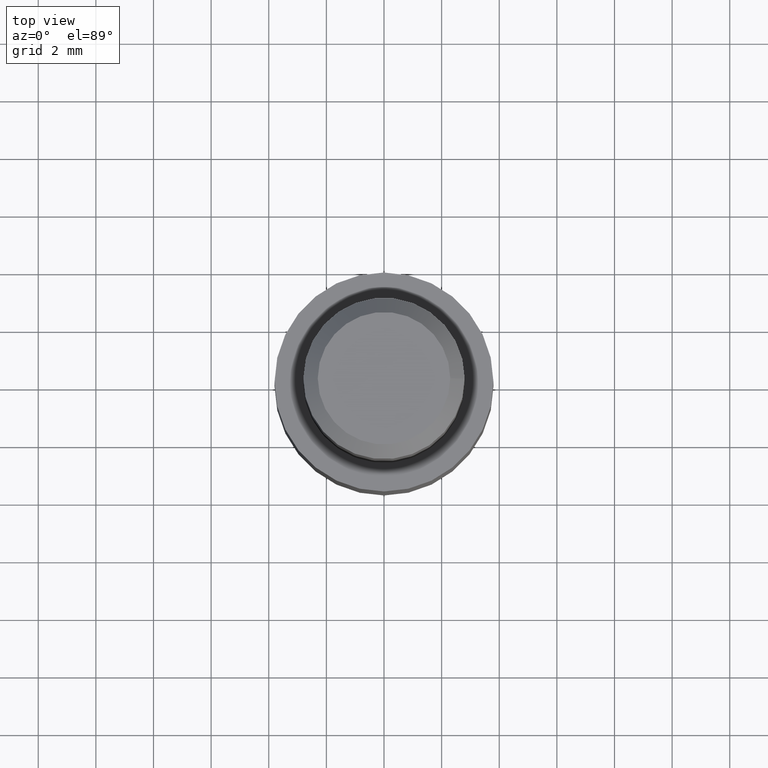
[diagram: clean part render]
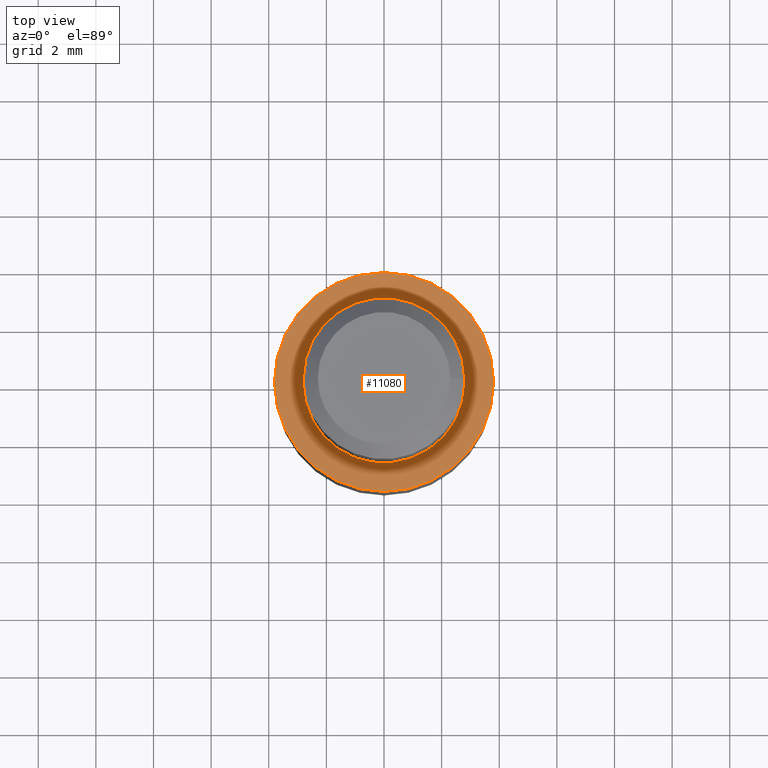
[diagram: same view with one face highlighted and labeled with its STEP entity id]
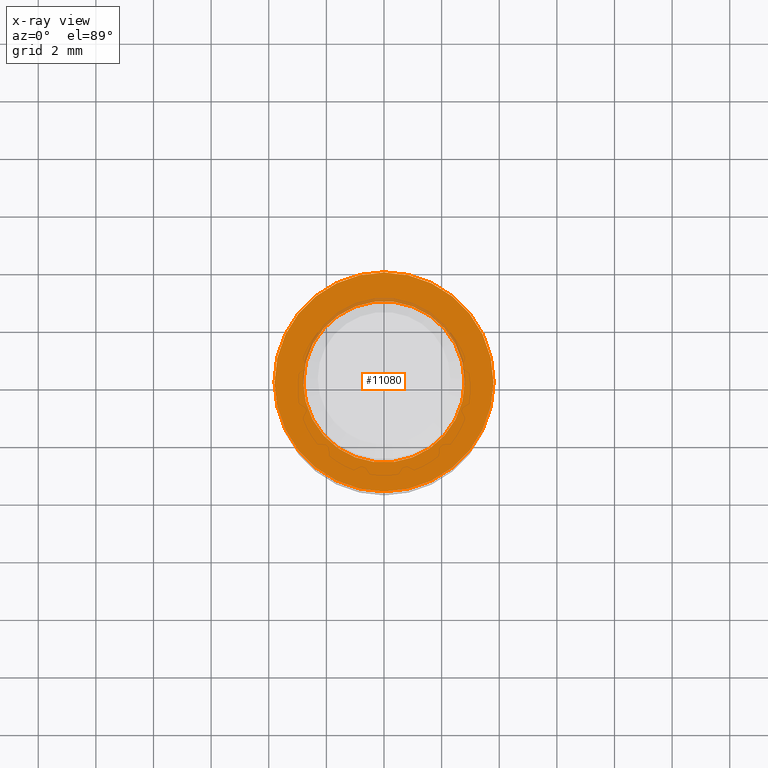
[diagram: x-ray of the same camera — body ghosted, the highlighted face saturated]
A machine part, top view. The second image highlights one B-rep face of the part: STEP entity #11080.
The next image is the same camera in x-ray: the body ghosted, the highlighted face saturated — about 3% of this face is hidden behind the body in this view.
In plain terms, the highlighted planar face has unit normal (0, 0, 1).
Its self-contained STEP definition (entity closure, byte-faithful):
#295 = CARTESIAN_POINT ( 'NONE',  ( 0.000000000000000000, 0.000000000000000000, 8.000000000000000000 ) ) ;
#355 = CIRCLE ( 'NONE', #7795, 3.799999999999999822 ) ;
#687 = CIRCLE ( 'NONE', #5477, 2.799999999999999822 ) ;
#2527 = EDGE_LOOP ( 'NONE', ( #10025 ) ) ;
#3214 = FACE_BOUND ( 'NONE', #11573, .T. ) ;
#3754 = ORIENTED_EDGE ( 'NONE', *, *, #12406, .F. ) ;
#4005 = VERTEX_POINT ( 'NONE', #7033 ) ;
#4205 = DIRECTION ( 'NONE',  ( 0.000000000000000000, 0.000000000000000000, 1.000000000000000000 ) ) ;
#4701 = AXIS2_PLACEMENT_3D ( 'NONE', #7775, #5899, #11997 ) ;
#5477 = AXIS2_PLACEMENT_3D ( 'NONE', #295, #4205, #11238 ) ;
#5899 = DIRECTION ( 'NONE',  ( 0.000000000000000000, 0.000000000000000000, 1.000000000000000000 ) ) ;
#7033 = CARTESIAN_POINT ( 'NONE',  ( 2.799999999999999822, 0.000000000000000000, 8.000000000000000000 ) ) ;
#7070 = CARTESIAN_POINT ( 'NONE',  ( 3.799999999999999822, 0.000000000000000000, 8.000000000000000000 ) ) ;
#7646 = DIRECTION ( 'NONE',  ( 0.000000000000000000, 0.000000000000000000, 1.000000000000000000 ) ) ;
#7775 = CARTESIAN_POINT ( 'NONE',  ( 0.000000000000000000, 0.000000000000000000, 8.000000000000000000 ) ) ;
#7795 = AXIS2_PLACEMENT_3D ( 'NONE', #9764, #7646, #10689 ) ;
#7820 = PLANE ( 'NONE',  #4701 ) ;
#9764 = CARTESIAN_POINT ( 'NONE',  ( 0.000000000000000000, 0.000000000000000000, 8.000000000000000000 ) ) ;
#10025 = ORIENTED_EDGE ( 'NONE', *, *, #10633, .T. ) ;
#10601 = FACE_OUTER_BOUND ( 'NONE', #2527, .T. ) ;
#10633 = EDGE_CURVE ( 'NONE', #12360, #12360, #355, .T. ) ;
#10689 = DIRECTION ( 'NONE',  ( 1.000000000000000000, 0.000000000000000000, 0.000000000000000000 ) ) ;
#11080 = ADVANCED_FACE ( 'NONE', ( #10601, #3214 ), #7820, .T. ) ;
#11238 = DIRECTION ( 'NONE',  ( 1.000000000000000000, 0.000000000000000000, 0.000000000000000000 ) ) ;
#11573 = EDGE_LOOP ( 'NONE', ( #3754 ) ) ;
#11997 = DIRECTION ( 'NONE',  ( 1.000000000000000000, 0.000000000000000000, -0.000000000000000000 ) ) ;
#12360 = VERTEX_POINT ( 'NONE', #7070 ) ;
#12406 = EDGE_CURVE ( 'NONE', #4005, #4005, #687, .T. ) ;